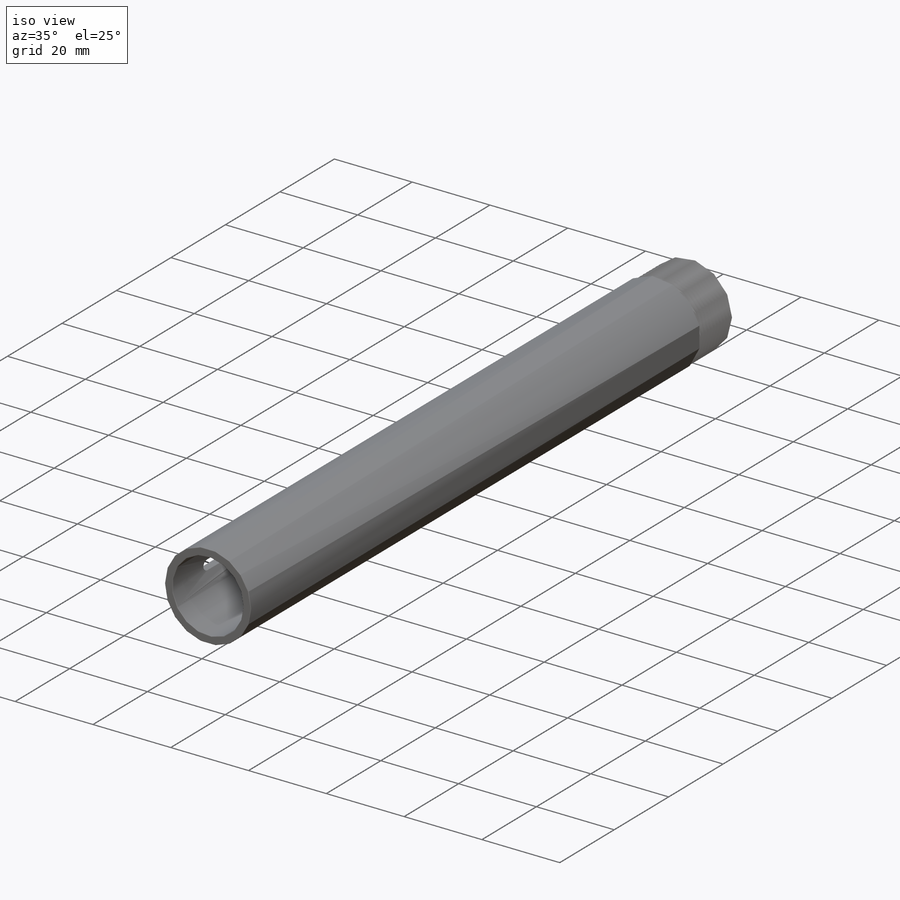
[diagram: iso view]
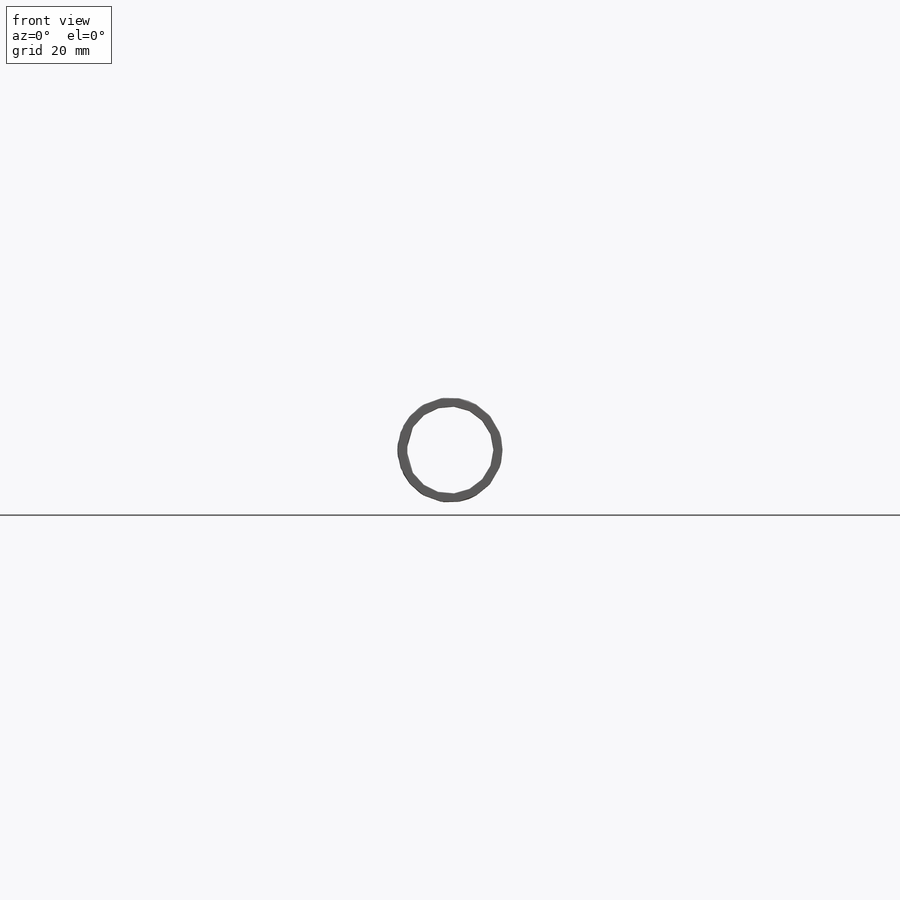
[diagram: front view]
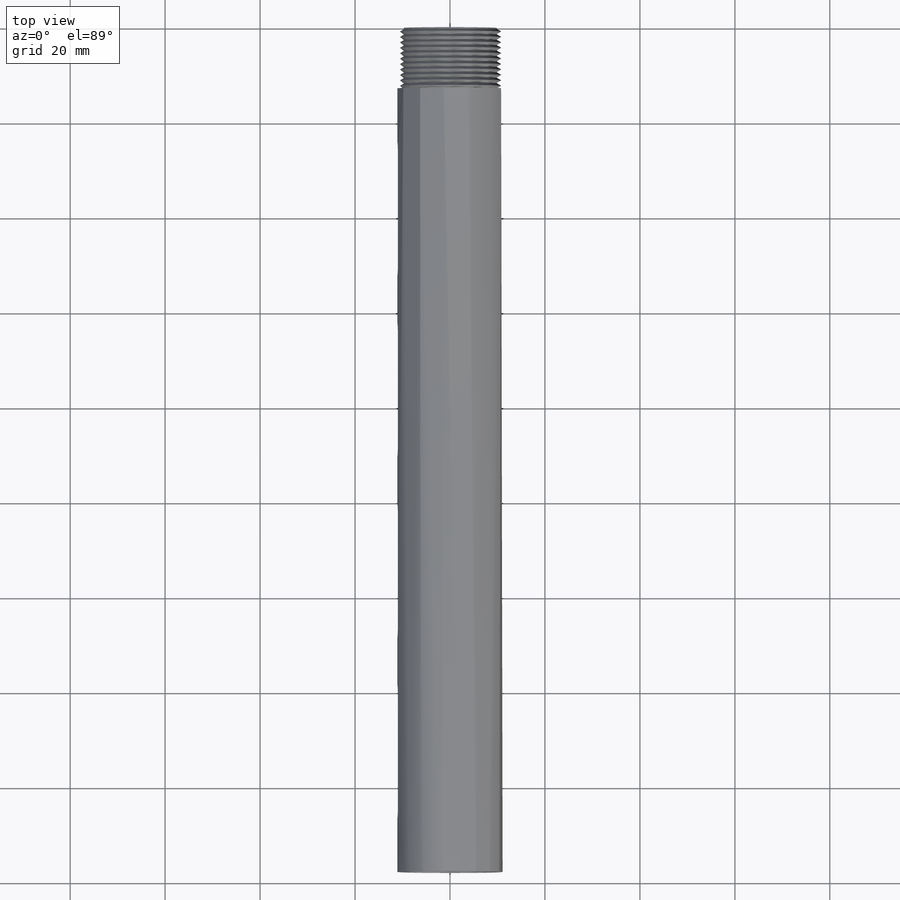
[diagram: top view]
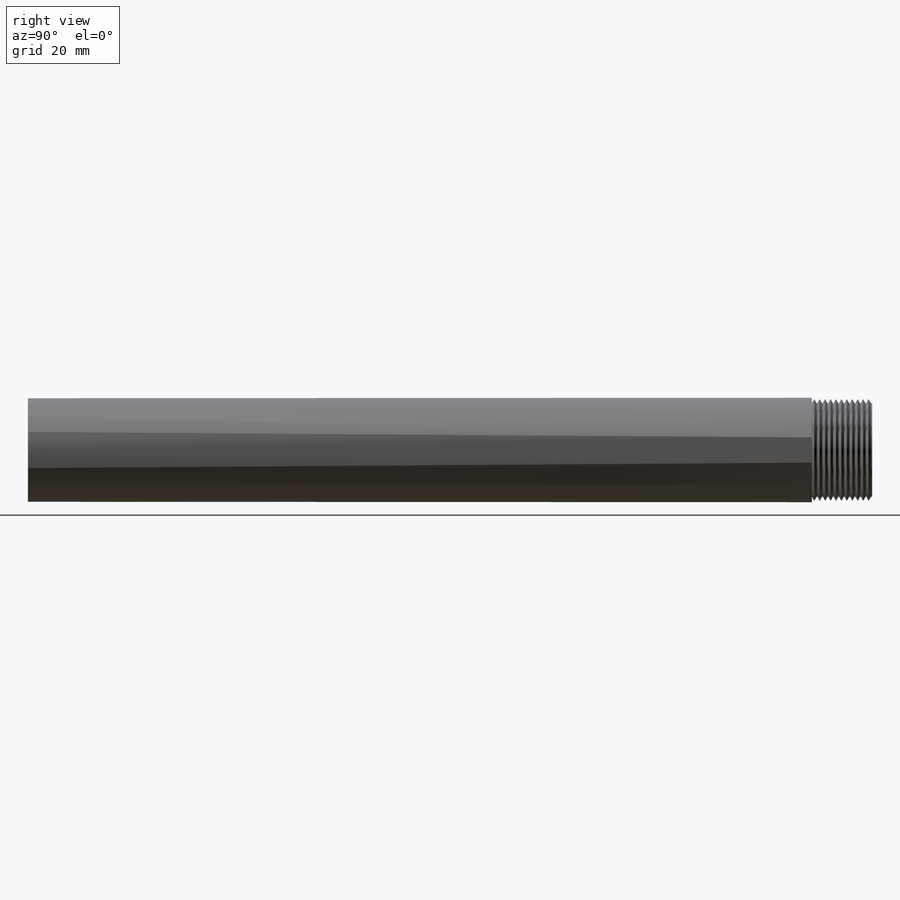
[diagram: right view]
SOLIDWORKS PART (.sldprt)
format: sldprt  version: not decoded by parser v0  size: 503,808 bytes
history: native  units: mm
features: sketch x3, material x1, extrude x1, plane x1, cut_extrude x1, cut_revolve x1, fillet x1 (+13 scaffold rows collapsed)
feature tree (22):
  scaffold x13  (default folders/planes/origin — collapsed)
  material  "6061 Alloy"
  sketch  "Sketch1"  dims[D1=9.652mm]
  extrude  "Extrude1"  Depth=177.8mm
  plane  "Plane1"  Offset=11.0744mm
  sketch  "Sketch6"  dims[D1=25.4mm]
  cut_extrude  "Cut-Extrude1"  Depth=2.54mm
  sketch  "Sketch9"  dims[c1.D1=0.762mm c2.D1=60.0deg c3.D1=12.7mm c4.D1=60.0deg c5.D1=0.889mm c6.D1=60.0deg c7.D1=~1.026529mm]
  cut_revolve  "Cut-Revolve1"  Angle=360deg
  fillet  "Fillet1"  Radius=0.127mm
decode coverage: 7 of 7 modeling features carry decoded parameters
note: ~ marks probable driven/reference dimensions
note: suppression state not decoded; provenance and decode notes live in map.json
